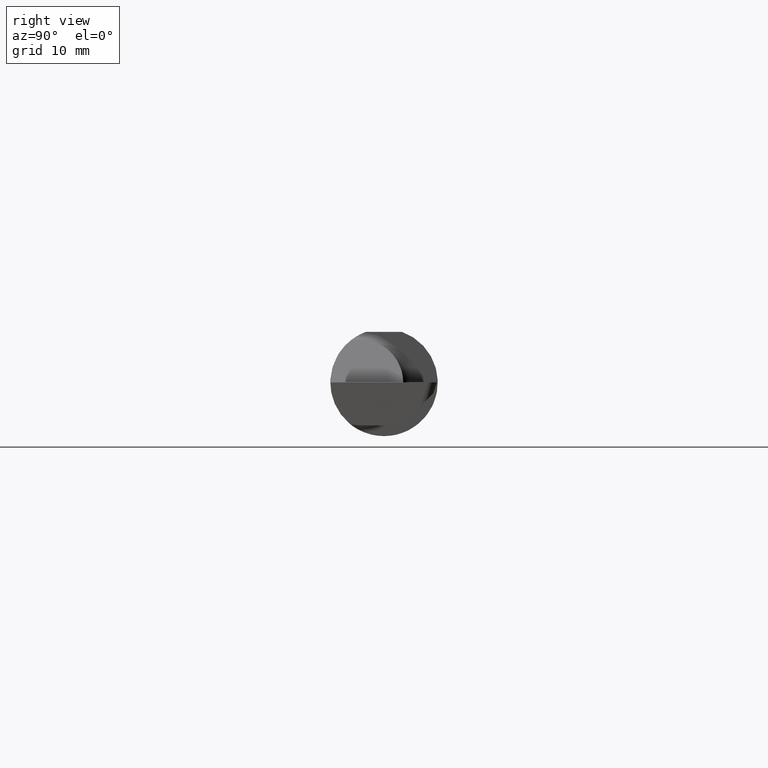
[diagram: clean part render]
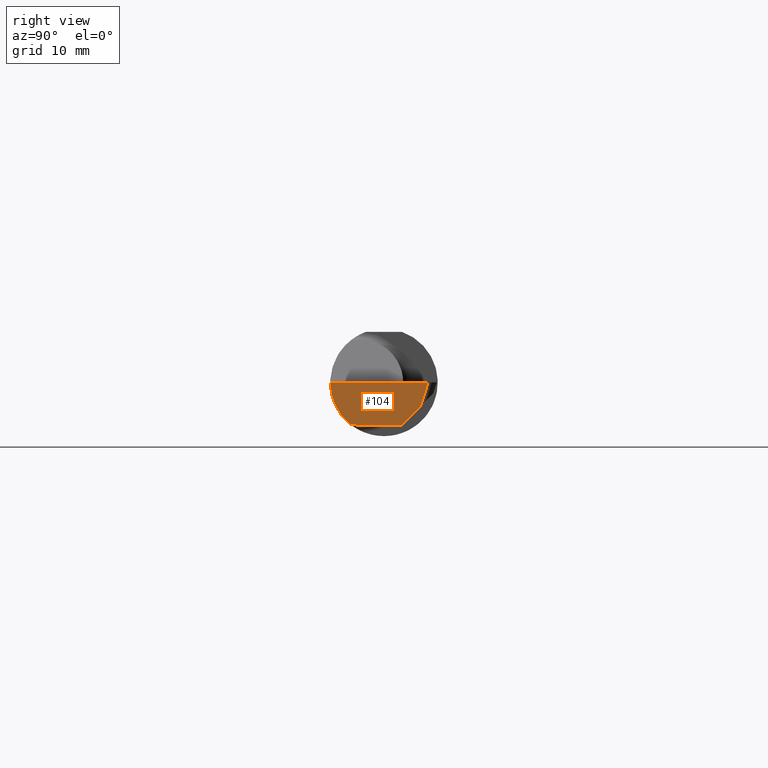
[diagram: same view with one face highlighted and labeled with its STEP entity id]
A machine part, right view. The second image highlights one B-rep face of the part: STEP entity #104.
In plain terms, the highlighted planar face has unit normal (-0.9992, 0.0349, 0.0175).
Its self-contained STEP definition (entity closure, byte-faithful):
#3 = EDGE_CURVE ( 'NONE', #56, #86, #184, .T. ) ;
#5 = LINE ( 'NONE', #206, #659 ) ;
#7 = VERTEX_POINT ( 'NONE', #107 ) ;
#23 =( BOUNDED_CURVE ( )  B_SPLINE_CURVE ( 3, ( #380, #633, #688, #70 ),
 .UNSPECIFIED., .F., .F. ) 
 B_SPLINE_CURVE_WITH_KNOTS ( ( 4, 4 ),
 ( 5.852427379562164411, 6.746954780470612256 ),
 .UNSPECIFIED. ) 
 CURVE ( )  GEOMETRIC_REPRESENTATION_ITEM ( )  RATIONAL_B_SPLINE_CURVE ( ( 1.000000000000000000, 0.9344226172588802060, 0.9344226172588802060, 1.000000000000000000 ) ) 
 REPRESENTATION_ITEM ( '' )  );
#29 = AXIS2_PLACEMENT_3D ( 'NONE', #233, #117, #483 ) ;
#42 = VERTEX_POINT ( 'NONE', #554 ) ;
#45 = CARTESIAN_POINT ( 'NONE',  ( 2.488618975064261996, -0.09477667630339429994, -0.1500000000000000500 ) ) ;
#55 = EDGE_CURVE ( 'NONE', #7, #500, #413, .T. ) ;
#56 = VERTEX_POINT ( 'NONE', #428 ) ;
#70 = CARTESIAN_POINT ( 'NONE',  ( 2.488006099050898090, -0.1873499999999999888, 0.000000000000000000 ) ) ;
#86 = VERTEX_POINT ( 'NONE', #120 ) ;
#92 = EDGE_CURVE ( 'NONE', #811, #500, #243, .T. ) ;
#104 = ADVANCED_FACE ( 'NONE', ( #794 ), #728, .F. ) ;
#107 = CARTESIAN_POINT ( 'NONE',  ( 2.487901662807321390, -0.1172600179964006090, -0.1461167706989303927 ) ) ;
#117 = DIRECTION ( 'NONE',  ( -0.9992386149554828290, 0.03489418134010779937, 0.01745240643728358798 ) ) ;
#120 = CARTESIAN_POINT ( 'NONE',  ( 2.499939950694276103, 0.1543907983005533280, 0.000000000000000000 ) ) ;
#145 = CARTESIAN_POINT ( 'NONE',  ( 2.499982912697886750, 0.1556210691174950700, 0.000000000000000000 ) ) ;
#169 = CARTESIAN_POINT ( 'NONE',  ( 2.499950392650356346, 0.1545085540790380740, 0.0003624150208497695482 ) ) ;
#181 = DIRECTION ( 'NONE',  ( 0.02739170151060046562, 0.3089010440752013031, 0.9506996579664918068 ) ) ;
#184 = LINE ( 'NONE', #169, #749 ) ;
#206 = CARTESIAN_POINT ( 'NONE',  ( 2.496474746315712423, 0.1068850723125631674, -0.1034179792305871259 ) ) ;
#217 = EDGE_CURVE ( 'NONE', #7, #42, #23, .T. ) ;
#233 = CARTESIAN_POINT ( 'NONE',  ( 2.499982912697886750, 0.1556210691174950700, 0.000000000000000000 ) ) ;
#243 = LINE ( 'NONE', #295, #385 ) ;
#259 = ORIENTED_EDGE ( 'NONE', *, *, #92, .F. ) ;
#261 = VECTOR ( 'NONE', #394, 39.37007874015748854 ) ;
#295 = CARTESIAN_POINT ( 'NONE',  ( 2.489315391880043915, -0.07483390797619585144, -0.1500000000000000500 ) ) ;
#380 = CARTESIAN_POINT ( 'NONE',  ( 2.487901662807321390, -0.1172600179964006090, -0.1461167706989303927 ) ) ;
#385 = VECTOR ( 'NONE', #675, 39.37007874015748143 ) ;
#394 = DIRECTION ( 'NONE',  ( -0.03489949670249509889, -0.9993908270190959842, 0.000000000000000000 ) ) ;
#413 =( BOUNDED_CURVE ( )  B_SPLINE_CURVE ( 3, ( #545, #487, #45, #732 ),
 .UNSPECIFIED., .F., .F. ) 
 B_SPLINE_CURVE_WITH_KNOTS ( ( 4, 4 ),
 ( 0.8789888184544266680, 1.107026853503869868 ),
 .UNSPECIFIED. ) 
 CURVE ( )  GEOMETRIC_REPRESENTATION_ITEM ( )  RATIONAL_B_SPLINE_CURVE ( ( 1.000000000000000000, 0.9956712472009929815, 0.9956712472009929815, 1.000000000000000000 ) ) 
 REPRESENTATION_ITEM ( '' )  );
#428 = CARTESIAN_POINT ( 'NONE',  ( 2.497553638666705655, 0.1274799371216592259, -0.08282311442149083158 ) ) ;
#457 = LINE ( 'NONE', #145, #261 ) ;
#471 = ORIENTED_EDGE ( 'NONE', *, *, #217, .F. ) ;
#483 = DIRECTION ( 'NONE',  ( -0.03489949670249509889, -0.9993908270190959842, 0.000000000000000000 ) ) ;
#487 = CARTESIAN_POINT ( 'NONE',  ( 2.488245243745037527, -0.1061291577212409715, -0.1486999626928446339 ) ) ;
#499 = EDGE_CURVE ( 'NONE', #86, #42, #457, .T. ) ;
#500 = VERTEX_POINT ( 'NONE', #544 ) ;
#544 = CARTESIAN_POINT ( 'NONE',  ( 2.489018003393509648, -0.08335000000000014619, -0.1500000000000000500 ) ) ;
#545 = CARTESIAN_POINT ( 'NONE',  ( 2.487901662807321390, -0.1172600179964006090, -0.1461167706989303927 ) ) ;
#554 = CARTESIAN_POINT ( 'NONE',  ( 2.488006099050898090, -0.1873499999999999888, 0.000000000000000000 ) ) ;
#559 = EDGE_LOOP ( 'NONE', ( #576, #594, #570, #471, #662, #259 ) ) ;
#570 = ORIENTED_EDGE ( 'NONE', *, *, #499, .T. ) ;
#576 = ORIENTED_EDGE ( 'NONE', *, *, #807, .F. ) ;
#594 = ORIENTED_EDGE ( 'NONE', *, *, #3, .T. ) ;
#633 = CARTESIAN_POINT ( 'NONE',  ( 2.486959146249366537, -0.1623470442677541203, -0.1099340280425339100 ) ) ;
#659 = VECTOR ( 'NONE', #768, 39.37007874015748143 ) ;
#662 = ORIENTED_EDGE ( 'NONE', *, *, #55, .T. ) ;
#675 = DIRECTION ( 'NONE',  ( -0.03489949670249509889, -0.9993908270190959842, 0.000000000000000000 ) ) ;
#688 = CARTESIAN_POINT ( 'NONE',  ( 2.486996401427643555, -0.1873500000000000443, -0.05781030015605125721 ) ) ;
#728 = PLANE ( 'NONE',  #29 ) ;
#732 = CARTESIAN_POINT ( 'NONE',  ( 2.489018003393509648, -0.08335000000000014619, -0.1500000000000000500 ) ) ;
#749 = VECTOR ( 'NONE', #181, 39.37007874015748854 ) ;
#763 = CARTESIAN_POINT ( 'NONE',  ( 2.494034478493233120, 0.06030305154315080546, -0.1500000000000000222 ) ) ;
#768 = DIRECTION ( 'NONE',  ( -0.03701744261649878714, -0.7066221440565398915, -0.7066221440565479961 ) ) ;
#794 = FACE_OUTER_BOUND ( 'NONE', #559, .T. ) ;
#807 = EDGE_CURVE ( 'NONE', #56, #811, #5, .T. ) ;
#811 = VERTEX_POINT ( 'NONE', #763 ) ;